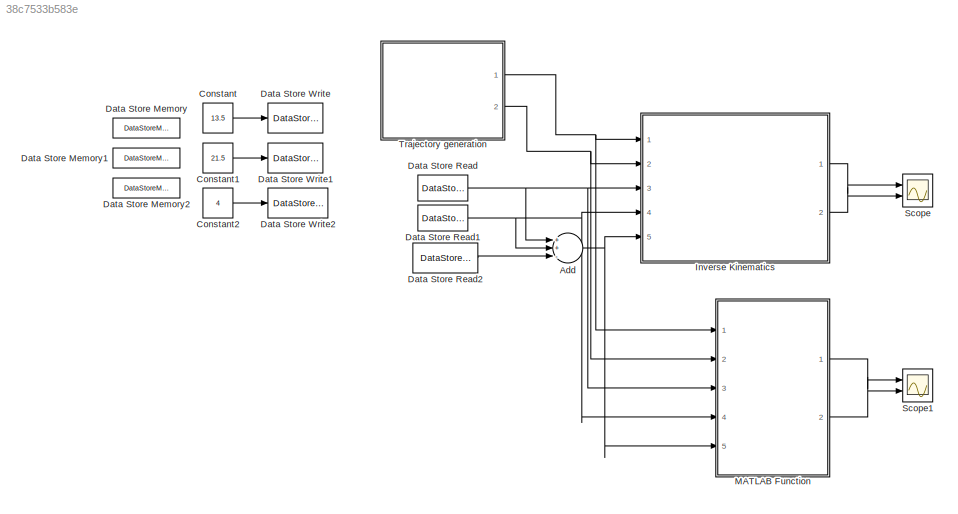
MODEL slx_38c7533b583e
KIND model
CONFIG AbsTol = auto
CONFIG EnableMultiTasking = off
CONFIG FixedStep = auto
CONFIG MaxStep = auto
CONFIG MinStep = auto
CONFIG RelTol = 1e-3
CONFIG SampleTimeConstraint = Unconstrained
CONFIG Solver = VariableStepAuto
CONFIG SolverName = VariableStepAuto
CONFIG StartTime = 0.0
CONFIG StopTime = 10.0
BLOCK [Sum] Add
  InputSameDT = off
  Inputs = ++-
  OutDataTypeStr = Inherit: Inherit via internal rule
  Ports = [3, 1]
  SaturateOnIntegerOverflow = off
BLOCK [Constant] Constant
  Value = 13.5
BLOCK [Constant] Constant1
  Value = 21.5
BLOCK [Constant] Constant2
  Value = 4
BLOCK [DataStoreMemory] Data Store Memory
  DataStoreName = Upper_len
  ReadBeforeWriteMsg = warning
  ShowAdditionalParam = off
  WriteAfterReadMsg = warning
  WriteAfterWriteMsg = warning
BLOCK [DataStoreMemory] Data Store Memory1
  DataStoreName = Lower_len
  ReadBeforeWriteMsg = warning
  ShowAdditionalParam = off
  WriteAfterReadMsg = warning
  WriteAfterWriteMsg = warning
BLOCK [DataStoreMemory] Data Store Memory2
  DataStoreName = standing_pos
  ReadBeforeWriteMsg = warning
  ShowAdditionalParam = off
  WriteAfterReadMsg = warning
  WriteAfterWriteMsg = warning
BLOCK [DataStoreRead] Data Store Read
  DataStoreName = Upper_len
  Ports = [0, 1]
BLOCK [DataStoreRead] Data Store Read1
  DataStoreName = Lower_len
  Ports = [0, 1]
BLOCK [DataStoreRead] Data Store Read2
  DataStoreName = standing_pos
  Ports = [0, 1]
BLOCK [DataStoreWrite] Data Store Write
  DataStoreName = Upper_len
  Ports = [1]
BLOCK [DataStoreWrite] Data Store Write1
  DataStoreName = Lower_len
  Ports = [1]
BLOCK [DataStoreWrite] Data Store Write2
  DataStoreName = standing_pos
  Ports = [1]
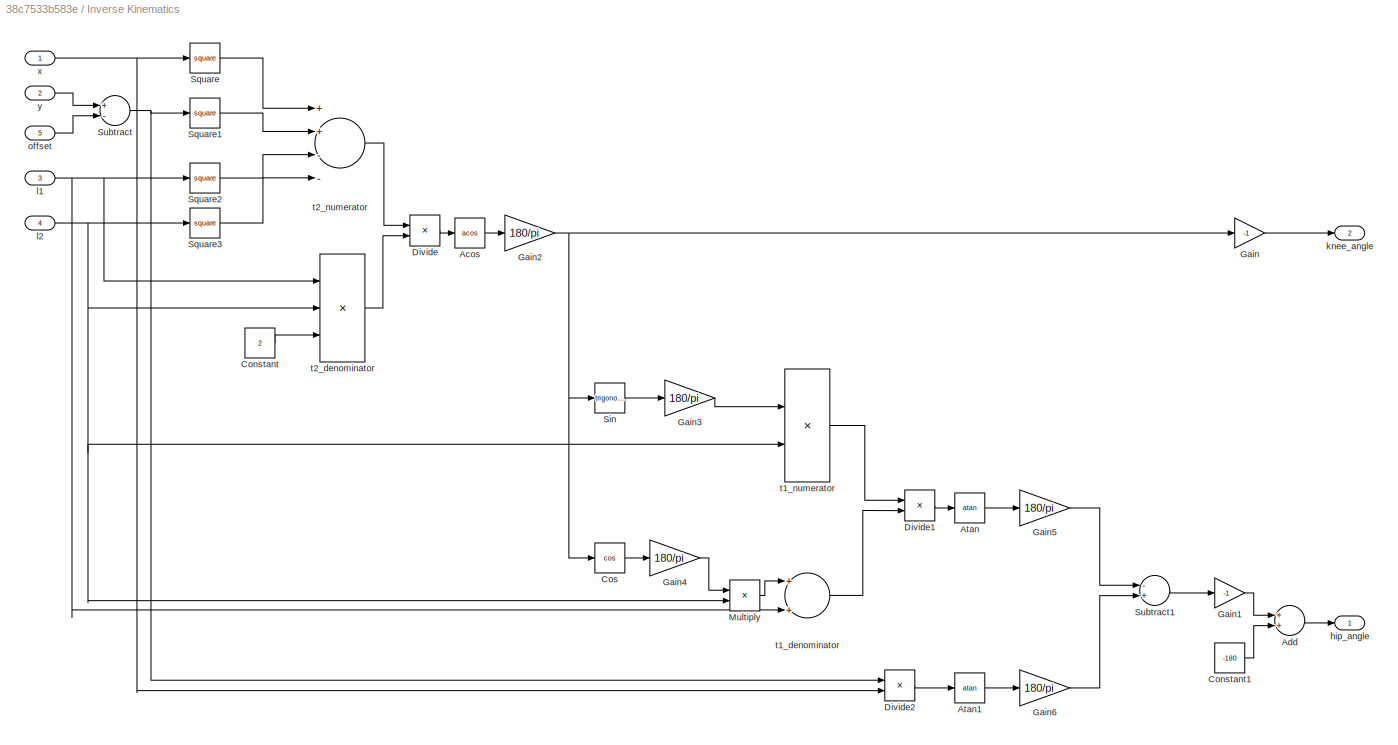
BLOCK [SubSystem] Inverse Kinematics
  Ports = [5, 2]
  RequestExecContextInheritance = off
BLOCK [Trigonometry] Inverse Kinematics/Acos
  Operator = acos
  Ports = [1, 1]
BLOCK [Sum] Inverse Kinematics/Add
  InputSameDT = off
  OutDataTypeStr = Inherit: Inherit via internal rule
  Ports = [2, 1]
  SaturateOnIntegerOverflow = off
BLOCK [Trigonometry] Inverse Kinematics/Atan
  Operator = atan
  Ports = [1, 1]
BLOCK [Trigonometry] Inverse Kinematics/Atan1
  Operator = atan
  Ports = [1, 1]
BLOCK [Constant] Inverse Kinematics/Constant
  Value = 2
BLOCK [Constant] Inverse Kinematics/Constant1
  Value = -180
BLOCK [Trigonometry] Inverse Kinematics/Cos
  Operator = cos
  Ports = [1, 1]
BLOCK [Product] Inverse Kinematics/Divide
  InputSameDT = off
  Inputs = */
  OutDataTypeStr = Inherit: Inherit via internal rule
  Ports = [2, 1]
  RndMeth = Floor
  SaturateOnIntegerOverflow = off
BLOCK [Product] Inverse Kinematics/Divide1
  InputSameDT = off
  Inputs = */
  OutDataTypeStr = Inherit: Inherit via internal rule
  Ports = [2, 1]
  RndMeth = Floor
  SaturateOnIntegerOverflow = off
BLOCK [Product] Inverse Kinematics/Divide2
  InputSameDT = off
  Inputs = */
  OutDataTypeStr = Inherit: Inherit via internal rule
  Ports = [2, 1]
  RndMeth = Floor
  SaturateOnIntegerOverflow = off
BLOCK [Gain] Inverse Kinematics/Gain
  Gain = -1
  OutDataTypeStr = Inherit: Inherit via internal rule
  ParamDataTypeStr = Inherit: Inherit via internal rule
  SaturateOnIntegerOverflow = off
BLOCK [Gain] Inverse Kinematics/Gain1
  Gain = -1
  OutDataTypeStr = Inherit: Inherit via internal rule
  ParamDataTypeStr = Inherit: Inherit via internal rule
  SaturateOnIntegerOverflow = off
BLOCK [Gain] Inverse Kinematics/Gain2
  Gain = 180/pi
  OutDataTypeStr = Inherit: Inherit via internal rule
  ParamDataTypeStr = Inherit: Inherit via internal rule
  SaturateOnIntegerOverflow = off
BLOCK [Gain] Inverse Kinematics/Gain3
  Gain = 180/pi
  OutDataTypeStr = Inherit: Inherit via internal rule
  ParamDataTypeStr = Inherit: Inherit via internal rule
  SaturateOnIntegerOverflow = off
BLOCK [Gain] Inverse Kinematics/Gain4
  Gain = 180/pi
  OutDataTypeStr = Inherit: Inherit via internal rule
  ParamDataTypeStr = Inherit: Inherit via internal rule
  SaturateOnIntegerOverflow = off
BLOCK [Gain] Inverse Kinematics/Gain5
  Gain = 180/pi
  OutDataTypeStr = Inherit: Inherit via internal rule
  ParamDataTypeStr = Inherit: Inherit via internal rule
  SaturateOnIntegerOverflow = off
BLOCK [Gain] Inverse Kinematics/Gain6
  Gain = 180/pi
  OutDataTypeStr = Inherit: Inherit via internal rule
  ParamDataTypeStr = Inherit: Inherit via internal rule
  SaturateOnIntegerOverflow = off
BLOCK [Product] Inverse Kinematics/Multiply
  InputSameDT = off
  OutDataTypeStr = Inherit: Inherit via internal rule
  Ports = [2, 1]
  RndMeth = Floor
  SaturateOnIntegerOverflow = off
BLOCK [Trigonometry] Inverse Kinematics/Sin
  Ports = [1, 1]
BLOCK [Math] Inverse Kinematics/Square
  Operator = square
  Ports = [1, 1]
BLOCK [Math] Inverse Kinematics/Square1
  Operator = square
  Ports = [1, 1]
BLOCK [Math] Inverse Kinematics/Square2
  Operator = square
  Ports = [1, 1]
BLOCK [Math] Inverse Kinematics/Square3
  Operator = square
  Ports = [1, 1]
BLOCK [Sum] Inverse Kinematics/Subtract
  InputSameDT = off
  Inputs = +-
  OutDataTypeStr = Inherit: Inherit via internal rule
  Ports = [2, 1]
  SaturateOnIntegerOverflow = off
BLOCK [Sum] Inverse Kinematics/Subtract1
  InputSameDT = off
  Inputs = -+
  OutDataTypeStr = Inherit: Inherit via internal rule
  Ports = [2, 1]
  SaturateOnIntegerOverflow = off
BLOCK [Outport] Inverse Kinematics/hip_angle
  IconDisplay = Port number
BLOCK [Outport] Inverse Kinematics/knee_angle
  IconDisplay = Port number
  Port = 2
BLOCK [Inport] Inverse Kinematics/l1
  IconDisplay = Port number
  Port = 3
BLOCK [Inport] Inverse Kinematics/l2
  IconDisplay = Port number
  Port = 4
BLOCK [Inport] Inverse Kinematics/offset
  IconDisplay = Port number
  Port = 5
BLOCK [Sum] Inverse Kinematics/t1_denominator
  InputSameDT = off
  OutDataTypeStr = Inherit: Inherit via internal rule
  Ports = [2, 1]
  SaturateOnIntegerOverflow = off
BLOCK [Product] Inverse Kinematics/t1_numerator
  InputSameDT = off
  OutDataTypeStr = Inherit: Inherit via internal rule
  Ports = [2, 1]
  RndMeth = Floor
  SaturateOnIntegerOverflow = off
BLOCK [Product] Inverse Kinematics/t2_denominator
  InputSameDT = off
  Inputs = ***
  OutDataTypeStr = Inherit: Inherit via internal rule
  Ports = [3, 1]
  RndMeth = Floor
  SaturateOnIntegerOverflow = off
BLOCK [Sum] Inverse Kinematics/t2_numerator
  InputSameDT = off
  Inputs = ++--
  OutDataTypeStr = Inherit: Inherit via internal rule
  Ports = [4, 1]
  SaturateOnIntegerOverflow = off
BLOCK [Inport] Inverse Kinematics/x
  IconDisplay = Port number
BLOCK [Inport] Inverse Kinematics/y
  IconDisplay = Port number
  Port = 2
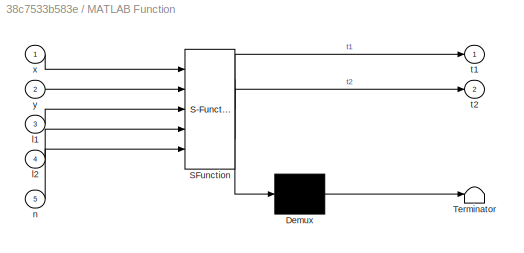
BLOCK [SubSystem] MATLAB Function
  ErrorFcn = Stateflow.Translate.translate
  PermitHierarchicalResolution = ExplicitOnly
  Ports = [5, 2]
  RequestExecContextInheritance = off
  SFBlockType = MATLAB Function
  TreatAsAtomicUnit = on
BLOCK [Demux] MATLAB Function/ Demux 
  Outputs = 1
  Ports = [1, 1]
BLOCK [S-Function] MATLAB Function/ SFunction 
  EnableBusSupport = on
  FunctionName = sf_sfun
  PortCounts = [5 3]
  Ports = [5, 3]
  SFcnIsStateOwnerBlock = off
  SFunctionDeploymentMode = off
  Tag = Stateflow S-Function closed_loop_plant 2
BLOCK [Terminator] MATLAB Function/ Terminator 
BLOCK [Inport] MATLAB Function/l1
  IconDisplay = Port number
  Port = 3
BLOCK [Inport] MATLAB Function/l2
  IconDisplay = Port number
  Port = 4
BLOCK [Inport] MATLAB Function/n
  IconDisplay = Port number
  Port = 5
BLOCK [Outport] MATLAB Function/t1
  IconDisplay = Port number
BLOCK [Outport] MATLAB Function/t2
  IconDisplay = Port number
  Port = 2
BLOCK [Inport] MATLAB Function/x
  IconDisplay = Port number
BLOCK [Inport] MATLAB Function/y
  IconDisplay = Port number
  Port = 2
BLOCK [Scope] Scope
  Floating = off
  NumInputPorts = 2
  Ports = [2]
  ScopeSpecificationString = Simulink.scopes.TimeScopeBlockCfg('CurrentConfiguration', extmgr.ConfigurationSet(extmgr.Configuration('Core','General UI',true),extmgr.Configuration('Core','Source UI',true),extmgr.Configuration('Sources','WiredSimulink',true,'DataLoggingVariableName','ScopeData1'),extmgr.Configuration('Visuals','Time Domain',true),extmgr.Configuration('Tools','Plot Navigation',true),extmgr.Configuration('Tools',...<+40ch>
BLOCK [Scope] Scope1
  Floating = off
  NumInputPorts = 2
  Ports = [2]
  ScopeSpecificationString = Simulink.scopes.TimeScopeBlockCfg('CurrentConfiguration', extmgr.ConfigurationSet(extmgr.Configuration('Core','General UI',true),extmgr.Configuration('Core','Source UI',true),extmgr.Configuration('Sources','WiredSimulink',true),extmgr.Configuration('Visuals','Time Domain',true),extmgr.Configuration('Tools','Plot Navigation',true),extmgr.Configuration('Tools','Measurements',true)),'Version','2018b'...<+1ch>
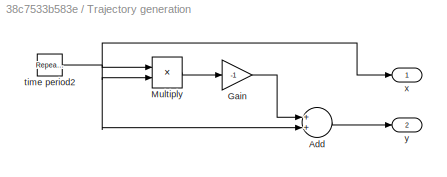
BLOCK [SubSystem] Trajectory generation 
  Ports = [0, 2]
  RequestExecContextInheritance = off
BLOCK [Sum] Trajectory generation /Add
  InputSameDT = off
  OutDataTypeStr = Inherit: Inherit via internal rule
  Ports = [2, 1]
  SaturateOnIntegerOverflow = off
BLOCK [Gain] Trajectory generation /Gain
  Gain = -1
  OutDataTypeStr = Inherit: Inherit via internal rule
  ParamDataTypeStr = Inherit: Inherit via internal rule
  SaturateOnIntegerOverflow = off
BLOCK [Product] Trajectory generation /Multiply
  InputSameDT = off
  OutDataTypeStr = Inherit: Inherit via internal rule
  Ports = [2, 1]
  RndMeth = Floor
  SaturateOnIntegerOverflow = off
BLOCK [Reference] Trajectory generation /time period2  REF=simulink/Sources/Repeating
Sequence
  Ports = [0, 1]
  SourceBlock = simulink/Sources/Repeating\nSequence
  SourceProductBaseCode = SL
  SourceProductName = Simulink
  SourceType = Repeating table
BLOCK [Outport] Trajectory generation /x
  IconDisplay = Port number
BLOCK [Outport] Trajectory generation /y
  IconDisplay = Port number
  Port = 2
NET Add:1 -> Inverse Kinematics:5, MATLAB Function:5
LINE Constant1:1 -> Data Store Write1:1
LINE Constant2:1 -> Data Store Write2:1
LINE Constant:1 -> Data Store Write:1
NET Data Store Read1:1 -> Add:2, Inverse Kinematics:4, MATLAB Function:4
LINE Data Store Read2:1 -> Add:3
NET Data Store Read:1 -> Add:1, Inverse Kinematics:3, MATLAB Function:3
LINE Inverse Kinematics/Acos:1 -> Inverse Kinematics/Gain2:1
LINE Inverse Kinematics/Add:1 -> Inverse Kinematics/hip_angle:1
LINE Inverse Kinematics/Atan1:1 -> Inverse Kinematics/Gain6:1
LINE Inverse Kinematics/Atan:1 -> Inverse Kinematics/Gain5:1
LINE Inverse Kinematics/Constant1:1 -> Inverse Kinematics/Add:2
LINE Inverse Kinematics/Constant:1 -> Inverse Kinematics/t2_denominator:3
LINE Inverse Kinematics/Cos:1 -> Inverse Kinematics/Gain4:1
LINE Inverse Kinematics/Divide1:1 -> Inverse Kinematics/Atan:1
LINE Inverse Kinematics/Divide2:1 -> Inverse Kinematics/Atan1:1
LINE Inverse Kinematics/Divide:1 -> Inverse Kinematics/Acos:1
LINE Inverse Kinematics/Gain1:1 -> Inverse Kinematics/Add:1
NET Inverse Kinematics/Gain2:1 -> Inverse Kinematics/Cos:1, Inverse Kinematics/Gain:1, Inverse Kinematics/Sin:1
LINE Inverse Kinematics/Gain3:1 -> Inverse Kinematics/t1_numerator:1
LINE Inverse Kinematics/Gain4:1 -> Inverse Kinematics/Multiply:1
LINE Inverse Kinematics/Gain5:1 -> Inverse Kinematics/Subtract1:1
LINE Inverse Kinematics/Gain6:1 -> Inverse Kinematics/Subtract1:2
LINE Inverse Kinematics/Gain:1 -> Inverse Kinematics/knee_angle:1
LINE Inverse Kinematics/Multiply:1 -> Inverse Kinematics/t1_denominator:1
LINE Inverse Kinematics/Sin:1 -> Inverse Kinematics/Gain3:1
LINE Inverse Kinematics/Square1:1 -> Inverse Kinematics/t2_numerator:2
LINE Inverse Kinematics/Square2:1 -> Inverse Kinematics/t2_numerator:3
LINE Inverse Kinematics/Square3:1 -> Inverse Kinematics/t2_numerator:4
LINE Inverse Kinematics/Square:1 -> Inverse Kinematics/t2_numerator:1
LINE Inverse Kinematics/Subtract1:1 -> Inverse Kinematics/Gain1:1
NET Inverse Kinematics/Subtract:1 -> Inverse Kinematics/Divide2:1, Inverse Kinematics/Square1:1
NET Inverse Kinematics/l1:1 -> Inverse Kinematics/Square2:1, Inverse Kinematics/t1_denominator:2, Inverse Kinematics/t2_denominator:1
NET Inverse Kinematics/l2:1 -> Inverse Kinematics/Multiply:2, Inverse Kinematics/Square3:1, Inverse Kinematics/t1_numerator:2, Inverse Kinematics/t2_denominator:2
LINE Inverse Kinematics/offset:1 -> Inverse Kinematics/Subtract:2
LINE Inverse Kinematics/t1_denominator:1 -> Inverse Kinematics/Divide1:2
LINE Inverse Kinematics/t1_numerator:1 -> Inverse Kinematics/Divide1:1
LINE Inverse Kinematics/t2_denominator:1 -> Inverse Kinematics/Divide:2
LINE Inverse Kinematics/t2_numerator:1 -> Inverse Kinematics/Divide:1
NET Inverse Kinematics/x:1 -> Inverse Kinematics/Divide2:2, Inverse Kinematics/Square:1
LINE Inverse Kinematics/y:1 -> Inverse Kinematics/Subtract:1
LINE Inverse Kinematics:1 -> Scope:1
LINE Inverse Kinematics:2 -> Scope:2
LINE MATLAB Function:1 -> Scope1:1
LINE MATLAB Function:2 -> Scope1:2
LINE Trajectory generation /Add:1 -> Trajectory generation /y:1
LINE Trajectory generation /Gain:1 -> Trajectory generation /Add:1
LINE Trajectory generation /Multiply:1 -> Trajectory generation /Gain:1
NET Trajectory generation /time period2:1 -> Trajectory generation /Add:2, Trajectory generation /Multiply:1, Trajectory generation /Multiply:2, Trajectory generation /x:1
NET Trajectory generation :1 -> Inverse Kinematics:1, MATLAB Function:1
NET Trajectory generation :2 -> Inverse Kinematics:2, MATLAB Function:2
note: NET lines group one-source signal fan-out (src -> all destinations, sorted); 1:1 wires keep LINE
CHART MATLAB Function states=1 transitions=1
  STATE_LABEL 'eML_blk_kernel()'
  STATE_LABEL 'SCRIPT:\nfunction [t1, t2] = fcn(x, y, l1, l2, n)\nt2_numerator = ((x).^2 + (y-n).^2 - l1^2 - l2^2);\nt2_denominator = (2 * l1 * l2);\nt2 = acosd(t2_numerator./t2_denominator);\n\nt1_numerator = l2 * sind(t2);\nt1_denominator = l1 + (l2 * cosd(t2));\nt1 = atand((y-n)./(x)) - atand(t1_numerator./t1_denominator);\n\nt2 = -t2;\nt1 = -180 -t1;\n\n'
